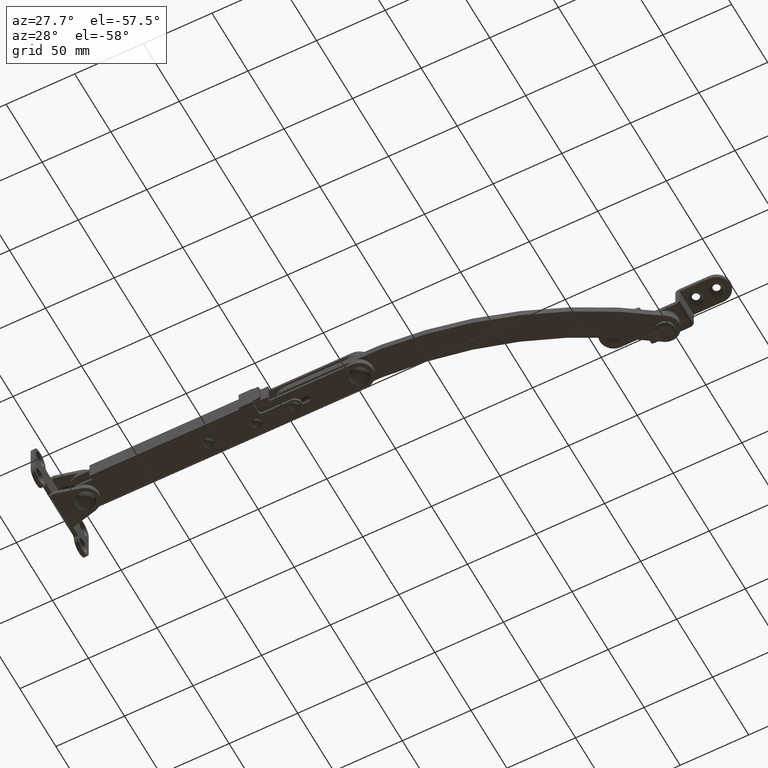
[diagram: clean part render]
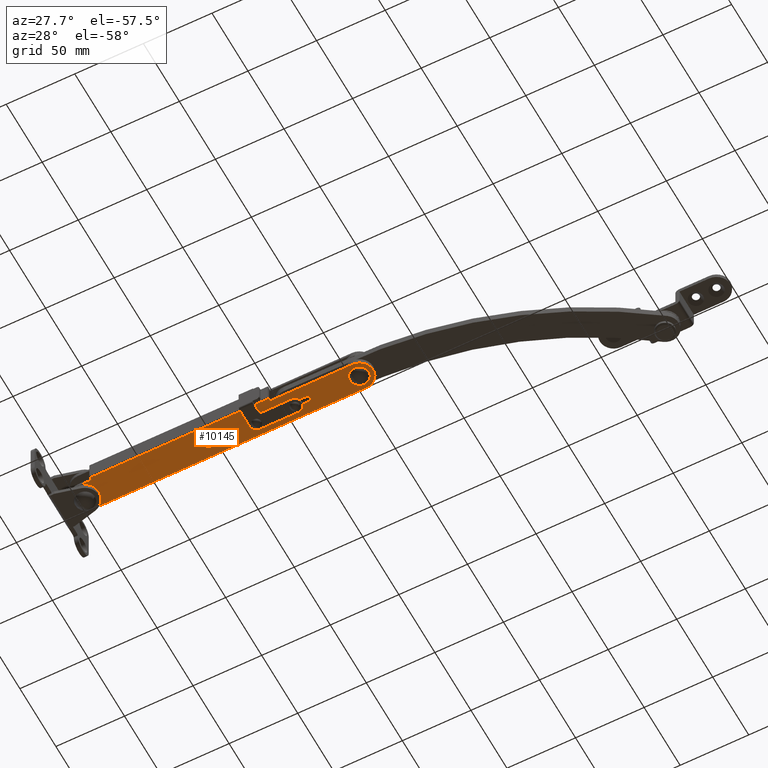
[diagram: same view with one face highlighted and labeled with its STEP entity id]
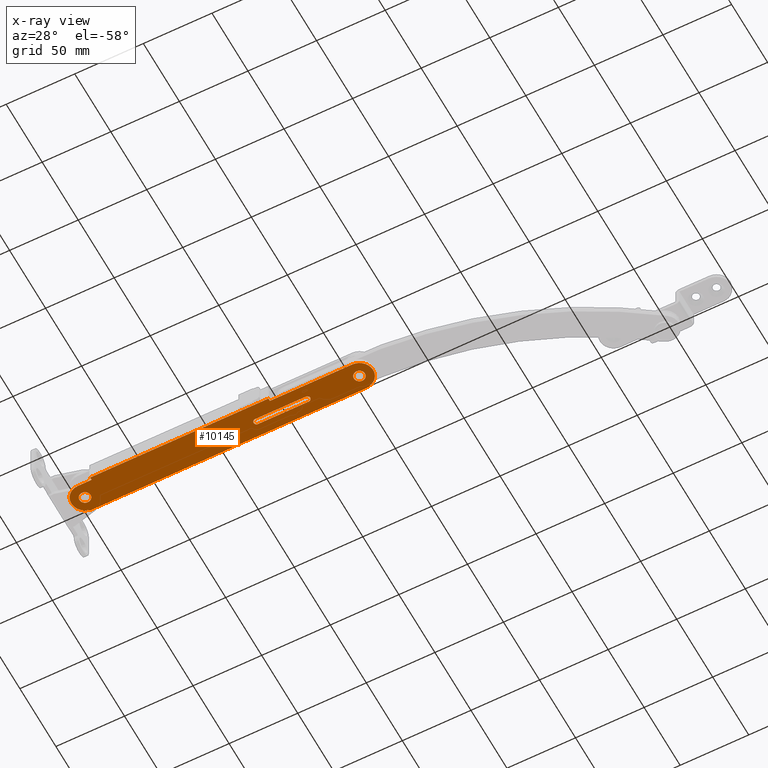
[diagram: x-ray of the same camera — body ghosted, the highlighted face saturated]
A machine part, auxiliary view. The second image highlights one B-rep face of the part: STEP entity #10145.
The next image is the same camera in x-ray: the body ghosted, the highlighted face saturated — about 0% of this face is hidden behind the body in this view.
In plain terms, the highlighted planar face has unit normal (0, 0, 1).
Its self-contained STEP definition (entity closure, byte-faithful):
#4 = VECTOR ( 'NONE', #8773, 1000.000000000000000 ) ;
#79 = ORIENTED_EDGE ( 'NONE', *, *, #14342, .F. ) ;
#94 = VERTEX_POINT ( 'NONE', #11751 ) ;
#232 = DIRECTION ( 'NONE',  ( 1.000000000000000000, 0.0000000000000000000, 0.0000000000000000000 ) ) ;
#401 = CIRCLE ( 'NONE', #9001, 10.00000000000000000 ) ;
#409 = CARTESIAN_POINT ( 'NONE',  ( 199.9910557339145200, 10.00000000000000000, -7.000000000000000000 ) ) ;
#468 = CARTESIAN_POINT ( 'NONE',  ( 90.00000000000000000, 0.0000000000000000000, -7.000000000000000000 ) ) ;
#469 = FACE_BOUND ( 'NONE', #12874, .T. ) ;
#520 = CARTESIAN_POINT ( 'NONE',  ( 90.00000000000000000, 0.0000000000000000000, -7.000000000000000000 ) ) ;
#651 = VECTOR ( 'NONE', #2980, 1000.000000000000000 ) ;
#709 = ORIENTED_EDGE ( 'NONE', *, *, #4833, .F. ) ;
#784 = AXIS2_PLACEMENT_3D ( 'NONE', #16352, #8673, #925 ) ;
#861 = EDGE_CURVE ( 'NONE', #13071, #1133, #15017, .T. ) ;
#925 = DIRECTION ( 'NONE',  ( -1.000000000000000000, 0.0000000000000000000, 0.0000000000000000000 ) ) ;
#951 = CARTESIAN_POINT ( 'NONE',  ( 125.0000000000000000, 2.100006000000095100, -7.000000000000000000 ) ) ;
#1133 = VERTEX_POINT ( 'NONE', #9476 ) ;
#1285 = ORIENTED_EDGE ( 'NONE', *, *, #13121, .T. ) ;
#1513 = CIRCLE ( 'NONE', #10130, 2.099999999999990800 ) ;
#1592 = EDGE_CURVE ( 'NONE', #15329, #13071, #12811, .T. ) ;
#1767 = AXIS2_PLACEMENT_3D ( 'NONE', #3718, #12758, #5021 ) ;
#1805 = DIRECTION ( 'NONE',  ( 1.000000000000000000, 0.0000000000000000000, 0.0000000000000000000 ) ) ;
#1844 = DIRECTION ( 'NONE',  ( 1.000000000000000000, 0.0000000000000000000, 0.0000000000000000000 ) ) ;
#1887 = ORIENTED_EDGE ( 'NONE', *, *, #11449, .T. ) ;
#1963 = CARTESIAN_POINT ( 'NONE',  ( 139.9000000000000100, 987.0000000000000000, -7.000000000000000000 ) ) ;
#1978 = ORIENTED_EDGE ( 'NONE', *, *, #16501, .F. ) ;
#2181 = EDGE_CURVE ( 'NONE', #5578, #16383, #1513, .T. ) ;
#2307 = CIRCLE ( 'NONE', #784, 10.00000198615783000 ) ;
#2312 = CARTESIAN_POINT ( 'NONE',  ( 0.0000000000000000000, 0.0000000000000000000, -7.000000000000000000 ) ) ;
#2343 = CIRCLE ( 'NONE', #4541, 4.049999999999999800 ) ;
#2373 = AXIS2_PLACEMENT_3D ( 'NONE', #11317, #3576, #12607 ) ;
#2460 = AXIS2_PLACEMENT_3D ( 'NONE', #468, #9522, #1805 ) ;
#2586 = ORIENTED_EDGE ( 'NONE', *, *, #13327, .T. ) ;
#2648 = LINE ( 'NONE', #6259, #8710 ) ;
#2681 = CARTESIAN_POINT ( 'NONE',  ( 88.00000000000000000, 2.449293598294703900E-016, -7.000000000000000000 ) ) ;
#2980 = DIRECTION ( 'NONE',  ( 0.0000000000000000000, 1.000000000000000000, 0.0000000000000000000 ) ) ;
#2985 = CIRCLE ( 'NONE', #6143, 4.049999999999998000 ) ;
#3012 = AXIS2_PLACEMENT_3D ( 'NONE', #14725, #7019, #16018 ) ;
#3066 = CARTESIAN_POINT ( 'NONE',  ( 209.9999709861578200, 1.986158023026284700E-006, -7.000000000000000000 ) ) ;
#3102 = VERTEX_POINT ( 'NONE', #5305 ) ;
#3264 = VERTEX_POINT ( 'NONE', #5466 ) ;
#3442 = DIRECTION ( 'NONE',  ( 0.0000000000000000000, -1.000000000000000000, 0.0000000000000000000 ) ) ;
#3461 = DIRECTION ( 'NONE',  ( -1.000000000000000000, 0.0000000000000000000, 0.0000000000000000000 ) ) ;
#3576 = DIRECTION ( 'NONE',  ( 0.0000000000000000000, 0.0000000000000000000, -1.000000000000000000 ) ) ;
#3609 = DIRECTION ( 'NONE',  ( 1.000000000000000000, 0.0000000000000000000, 0.0000000000000000000 ) ) ;
#3702 = CARTESIAN_POINT ( 'NONE',  ( 199.9999688314125300, -9.999999999999799300, -7.000000000000000000 ) ) ;
#3718 = CARTESIAN_POINT ( 'NONE',  ( 199.9999689999999900, 0.0000000000000000000, -7.000000000000000000 ) ) ;
#3936 = FACE_BOUND ( 'NONE', #8390, .T. ) ;
#3995 = EDGE_CURVE ( 'NONE', #12105, #16077, #12501, .T. ) ;
#4046 = CARTESIAN_POINT ( 'NONE',  ( 0.0000000000000000000, 0.0000000000000000000, -7.000000000000000000 ) ) ;
#4191 = ORIENTED_EDGE ( 'NONE', *, *, #13173, .F. ) ;
#4541 = AXIS2_PLACEMENT_3D ( 'NONE', #2312, #11348, #3609 ) ;
#4546 = DIRECTION ( 'NONE',  ( 0.0000000000000000000, 0.0000000000000000000, 1.000000000000000000 ) ) ;
#4580 = DIRECTION ( 'NONE',  ( -1.000000000000000000, -0.0000000000000000000, -0.0000000000000000000 ) ) ;
#4597 = ORIENTED_EDGE ( 'NONE', *, *, #15222, .T. ) ;
#4682 = CARTESIAN_POINT ( 'NONE',  ( 0.0000000000000000000, -9.999999999999799300, -7.000000000000000000 ) ) ;
#4807 = VERTEX_POINT ( 'NONE', #13076 ) ;
#4820 = CARTESIAN_POINT ( 'NONE',  ( 0.0000000000000000000, 0.0000000000000000000, -7.000000000000000000 ) ) ;
#4833 = EDGE_CURVE ( 'NONE', #8216, #6227, #2985, .T. ) ;
#4899 = CARTESIAN_POINT ( 'NONE',  ( 161.9999691466075000, -2.100006000000045300, -7.000000000000000000 ) ) ;
#4961 = ORIENTED_EDGE ( 'NONE', *, *, #3995, .F. ) ;
#5003 = ORIENTED_EDGE ( 'NONE', *, *, #15439, .T. ) ;
#5021 = DIRECTION ( 'NONE',  ( 1.000000000000000000, 0.0000000000000000000, 0.0000000000000000000 ) ) ;
#5025 = EDGE_LOOP ( 'NONE', ( #4961, #79 ) ) ;
#5305 = CARTESIAN_POINT ( 'NONE',  ( 0.0000000000000000000, 10.00000000000000000, -7.000000000000000000 ) ) ;
#5330 = DIRECTION ( 'NONE',  ( 1.000000000000000000, 0.0000000000000000000, 0.0000000000000000000 ) ) ;
#5348 = CARTESIAN_POINT ( 'NONE',  ( -4.049999999999999800, 4.959819536546779600E-016, -7.000000000000000000 ) ) ;
#5466 = CARTESIAN_POINT ( 'NONE',  ( 10.00000000000000000, -12.00000000000000000, -7.000000000000000000 ) ) ;
#5560 = AXIS2_PLACEMENT_3D ( 'NONE', #6898, #15914, #8211 ) ;
#5561 = CARTESIAN_POINT ( 'NONE',  ( 140.0000000000000000, -9.999999999999799300, -7.000000000000000000 ) ) ;
#5578 = VERTEX_POINT ( 'NONE', #7387 ) ;
#5725 = LINE ( 'NONE', #8614, #8772 ) ;
#5931 = VECTOR ( 'NONE', #16529, 1000.000000000000000 ) ;
#6108 = DIRECTION ( 'NONE',  ( -1.000000000000000000, 0.0000000000000000000, 0.0000000000000000000 ) ) ;
#6143 = AXIS2_PLACEMENT_3D ( 'NONE', #15699, #7990, #232 ) ;
#6159 = CARTESIAN_POINT ( 'NONE',  ( 195.9499690000000100, 4.959819536546781600E-016, -7.000000000000000000 ) ) ;
#6227 = VERTEX_POINT ( 'NONE', #6159 ) ;
#6259 = CARTESIAN_POINT ( 'NONE',  ( 0.0000000000000000000, 10.00000000000000000, -7.000000000000000000 ) ) ;
#6853 = EDGE_CURVE ( 'NONE', #4807, #8861, #2343, .T. ) ;
#6898 = CARTESIAN_POINT ( 'NONE',  ( 125.0000000000000000, 0.0000000000000000000, -7.000000000000000000 ) ) ;
#7019 = DIRECTION ( 'NONE',  ( -0.0000000000000000000, -0.0000000000000000000, -1.000000000000000000 ) ) ;
#7095 = CARTESIAN_POINT ( 'NONE',  ( 204.0499690000000000, 0.0000000000000000000, -7.000000000000000000 ) ) ;
#7182 = ORIENTED_EDGE ( 'NONE', *, *, #16365, .F. ) ;
#7196 = CARTESIAN_POINT ( 'NONE',  ( 161.9999689999999900, 0.0000000000000000000, -7.000000000000000000 ) ) ;
#7356 = FACE_OUTER_BOUND ( 'NONE', #14183, .T. ) ;
#7387 = CARTESIAN_POINT ( 'NONE',  ( 161.9999689999999900, 2.100006000000095100, -7.000000000000000000 ) ) ;
#7413 = VERTEX_POINT ( 'NONE', #409 ) ;
#7469 = CARTESIAN_POINT ( 'NONE',  ( 161.9999689999999900, -2.100006000000000000, -7.000000000000000000 ) ) ;
#7533 = LINE ( 'NONE', #15822, #651 ) ;
#7576 = ORIENTED_EDGE ( 'NONE', *, *, #14589, .T. ) ;
#7990 = DIRECTION ( 'NONE',  ( -0.0000000000000000000, -0.0000000000000000000, -1.000000000000000000 ) ) ;
#8211 = DIRECTION ( 'NONE',  ( 1.000000000000000000, 0.0000000000000000000, 0.0000000000000000000 ) ) ;
#8216 = VERTEX_POINT ( 'NONE', #7095 ) ;
#8277 = VERTEX_POINT ( 'NONE', #4682 ) ;
#8390 = EDGE_LOOP ( 'NONE', ( #14839, #1978 ) ) ;
#8433 = EDGE_CURVE ( 'NONE', #10319, #5578, #9218, .T. ) ;
#8503 = DIRECTION ( 'NONE',  ( 1.000000000000000000, 0.0000000000000000000, 0.0000000000000000000 ) ) ;
#8568 = CIRCLE ( 'NONE', #3012, 2.099999999999990800 ) ;
#8614 = CARTESIAN_POINT ( 'NONE',  ( 10.00000000000000000, -9.999999999999799300, -7.000000000000000000 ) ) ;
#8673 = DIRECTION ( 'NONE',  ( 0.0000000000000000000, 0.0000000000000000000, -1.000000000000000000 ) ) ;
#8710 = VECTOR ( 'NONE', #10213, 1000.000000000000000 ) ;
#8772 = VECTOR ( 'NONE', #3461, 1000.000000000000000 ) ;
#8773 = DIRECTION ( 'NONE',  ( -1.000000000000000000, -0.0000000000000000000, -0.0000000000000000000 ) ) ;
#8812 = VECTOR ( 'NONE', #12522, 1000.000000000000000 ) ;
#8861 = VERTEX_POINT ( 'NONE', #5348 ) ;
#8984 = VECTOR ( 'NONE', #3442, 1000.000000000000000 ) ;
#9001 = AXIS2_PLACEMENT_3D ( 'NONE', #4820, #13849, #6108 ) ;
#9218 = LINE ( 'NONE', #951, #8812 ) ;
#9474 = ORIENTED_EDGE ( 'NONE', *, *, #861, .T. ) ;
#9476 = CARTESIAN_POINT ( 'NONE',  ( 140.0000000000000000, -12.00000000000000000, -7.000000000000000000 ) ) ;
#9522 = DIRECTION ( 'NONE',  ( -0.0000000000000000000, -0.0000000000000000000, -1.000000000000000000 ) ) ;
#9565 = DIRECTION ( 'NONE',  ( -0.0000000000000000000, -0.0000000000000000000, -1.000000000000000000 ) ) ;
#9892 = CARTESIAN_POINT ( 'NONE',  ( 140.0000000000000000, -9.999999999999799300, -7.000000000000000000 ) ) ;
#10130 = AXIS2_PLACEMENT_3D ( 'NONE', #7196, #16196, #8503 ) ;
#10145 = ADVANCED_FACE ( 'NONE', ( #10808, #3936, #7356, #469, #13820 ), #12286, .F. ) ;
#10213 = DIRECTION ( 'NONE',  ( 1.000000000000000000, 0.0000000000000000000, 0.0000000000000000000 ) ) ;
#10250 = ORIENTED_EDGE ( 'NONE', *, *, #2181, .F. ) ;
#10319 = VERTEX_POINT ( 'NONE', #16522 ) ;
#10739 = LINE ( 'NONE', #7469, #4 ) ;
#10808 = FACE_BOUND ( 'NONE', #5025, .T. ) ;
#10812 = EDGE_CURVE ( 'NONE', #16383, #13291, #8568, .T. ) ;
#10821 = CARTESIAN_POINT ( 'NONE',  ( 164.0999689999999900, 0.0000000000000000000, -7.000000000000000000 ) ) ;
#11206 = CIRCLE ( 'NONE', #12360, 2.000000000000001800 ) ;
#11317 = CARTESIAN_POINT ( 'NONE',  ( 199.9999689999999900, 1.986158023026284700E-006, -7.000000000000000000 ) ) ;
#11348 = DIRECTION ( 'NONE',  ( -0.0000000000000000000, -0.0000000000000000000, -1.000000000000000000 ) ) ;
#11449 = EDGE_CURVE ( 'NONE', #16421, #15329, #14980, .T. ) ;
#11632 = AXIS2_PLACEMENT_3D ( 'NONE', #4046, #13067, #5330 ) ;
#11751 = CARTESIAN_POINT ( 'NONE',  ( 10.00000000000000000, -9.999999999999799300, -7.000000000000000000 ) ) ;
#12105 = VERTEX_POINT ( 'NONE', #14861 ) ;
#12216 = ORIENTED_EDGE ( 'NONE', *, *, #13292, .F. ) ;
#12286 = PLANE ( 'NONE',  #15751 ) ;
#12319 = CARTESIAN_POINT ( 'NONE',  ( 10.00000000000000000, -12.00000000000000000, -7.000000000000000000 ) ) ;
#12360 = AXIS2_PLACEMENT_3D ( 'NONE', #520, #9565, #1844 ) ;
#12501 = CIRCLE ( 'NONE', #2460, 2.000000000000001800 ) ;
#12522 = DIRECTION ( 'NONE',  ( 1.000000000000000000, -0.0000000000000000000, -0.0000000000000000000 ) ) ;
#12588 = LINE ( 'NONE', #12319, #15987 ) ;
#12607 = DIRECTION ( 'NONE',  ( -1.000000000000000000, 0.0000000000000000000, 0.0000000000000000000 ) ) ;
#12758 = DIRECTION ( 'NONE',  ( -0.0000000000000000000, -0.0000000000000000000, -1.000000000000000000 ) ) ;
#12811 = LINE ( 'NONE', #3702, #5931 ) ;
#12874 = EDGE_LOOP ( 'NONE', ( #709, #12216 ) ) ;
#13067 = DIRECTION ( 'NONE',  ( -0.0000000000000000000, -0.0000000000000000000, -1.000000000000000000 ) ) ;
#13071 = VERTEX_POINT ( 'NONE', #9892 ) ;
#13076 = CARTESIAN_POINT ( 'NONE',  ( 4.049999999999999800, 0.0000000000000000000, -7.000000000000000000 ) ) ;
#13121 = EDGE_CURVE ( 'NONE', #8277, #3102, #401, .T. ) ;
#13144 = CARTESIAN_POINT ( 'NONE',  ( 199.9999688314125300, -9.999999999999799300, -7.000000000000000000 ) ) ;
#13173 = EDGE_CURVE ( 'NONE', #13291, #16686, #10739, .T. ) ;
#13284 = CARTESIAN_POINT ( 'NONE',  ( 125.0000000000000000, -2.100006000000000000, -7.000000000000000000 ) ) ;
#13291 = VERTEX_POINT ( 'NONE', #4899 ) ;
#13292 = EDGE_CURVE ( 'NONE', #6227, #8216, #15940, .T. ) ;
#13327 = EDGE_CURVE ( 'NONE', #3102, #7413, #2648, .T. ) ;
#13403 = ORIENTED_EDGE ( 'NONE', *, *, #14621, .T. ) ;
#13570 = CIRCLE ( 'NONE', #5560, 2.099999999999990800 ) ;
#13573 = DIRECTION ( 'NONE',  ( 1.000000000000000000, 0.0000000000000000000, 0.0000000000000000000 ) ) ;
#13820 = FACE_BOUND ( 'NONE', #14629, .T. ) ;
#13849 = DIRECTION ( 'NONE',  ( 0.0000000000000000000, 0.0000000000000000000, -1.000000000000000000 ) ) ;
#14080 = ORIENTED_EDGE ( 'NONE', *, *, #8433, .F. ) ;
#14183 = EDGE_LOOP ( 'NONE', ( #9474, #4597, #5003, #7576, #1285, #2586, #13403, #1887, #14498 ) ) ;
#14342 = EDGE_CURVE ( 'NONE', #16077, #12105, #11206, .T. ) ;
#14498 = ORIENTED_EDGE ( 'NONE', *, *, #1592, .T. ) ;
#14589 = EDGE_CURVE ( 'NONE', #94, #8277, #5725, .T. ) ;
#14621 = EDGE_CURVE ( 'NONE', #7413, #16421, #2307, .T. ) ;
#14629 = EDGE_LOOP ( 'NONE', ( #7182, #4191, #15096, #10250, #14080 ) ) ;
#14725 = CARTESIAN_POINT ( 'NONE',  ( 161.9999689999999900, 0.0000000000000000000, -7.000000000000000000 ) ) ;
#14839 = ORIENTED_EDGE ( 'NONE', *, *, #6853, .F. ) ;
#14861 = CARTESIAN_POINT ( 'NONE',  ( 92.00000000000000000, 0.0000000000000000000, -7.000000000000000000 ) ) ;
#14980 = CIRCLE ( 'NONE', #2373, 10.00000198615783000 ) ;
#15017 = LINE ( 'NONE', #5561, #8984 ) ;
#15096 = ORIENTED_EDGE ( 'NONE', *, *, #10812, .F. ) ;
#15222 = EDGE_CURVE ( 'NONE', #1133, #3264, #12588, .T. ) ;
#15329 = VERTEX_POINT ( 'NONE', #13144 ) ;
#15439 = EDGE_CURVE ( 'NONE', #3264, #94, #7533, .T. ) ;
#15699 = CARTESIAN_POINT ( 'NONE',  ( 199.9999689999999900, 0.0000000000000000000, -7.000000000000000000 ) ) ;
#15751 = AXIS2_PLACEMENT_3D ( 'NONE', #1963, #4546, #13573 ) ;
#15766 = CIRCLE ( 'NONE', #11632, 4.049999999999999800 ) ;
#15822 = CARTESIAN_POINT ( 'NONE',  ( 10.00000000000000000, -13.00000000000000000, -7.000000000000000000 ) ) ;
#15914 = DIRECTION ( 'NONE',  ( -0.0000000000000000000, -0.0000000000000000000, -1.000000000000000000 ) ) ;
#15940 = CIRCLE ( 'NONE', #1767, 4.049999999999998000 ) ;
#15987 = VECTOR ( 'NONE', #4580, 1000.000000000000000 ) ;
#16018 = DIRECTION ( 'NONE',  ( 1.000000000000000000, 0.0000000000000000000, 0.0000000000000000000 ) ) ;
#16077 = VERTEX_POINT ( 'NONE', #2681 ) ;
#16196 = DIRECTION ( 'NONE',  ( -0.0000000000000000000, -0.0000000000000000000, -1.000000000000000000 ) ) ;
#16352 = CARTESIAN_POINT ( 'NONE',  ( 199.9999689999999900, 1.986158023026284700E-006, -7.000000000000000000 ) ) ;
#16365 = EDGE_CURVE ( 'NONE', #16686, #10319, #13570, .T. ) ;
#16383 = VERTEX_POINT ( 'NONE', #10821 ) ;
#16421 = VERTEX_POINT ( 'NONE', #3066 ) ;
#16501 = EDGE_CURVE ( 'NONE', #8861, #4807, #15766, .T. ) ;
#16522 = CARTESIAN_POINT ( 'NONE',  ( 125.0000000000000000, 2.100006000000095100, -7.000000000000000000 ) ) ;
#16529 = DIRECTION ( 'NONE',  ( -1.000000000000000000, 0.0000000000000000000, 0.0000000000000000000 ) ) ;
#16686 = VERTEX_POINT ( 'NONE', #13284 ) ;